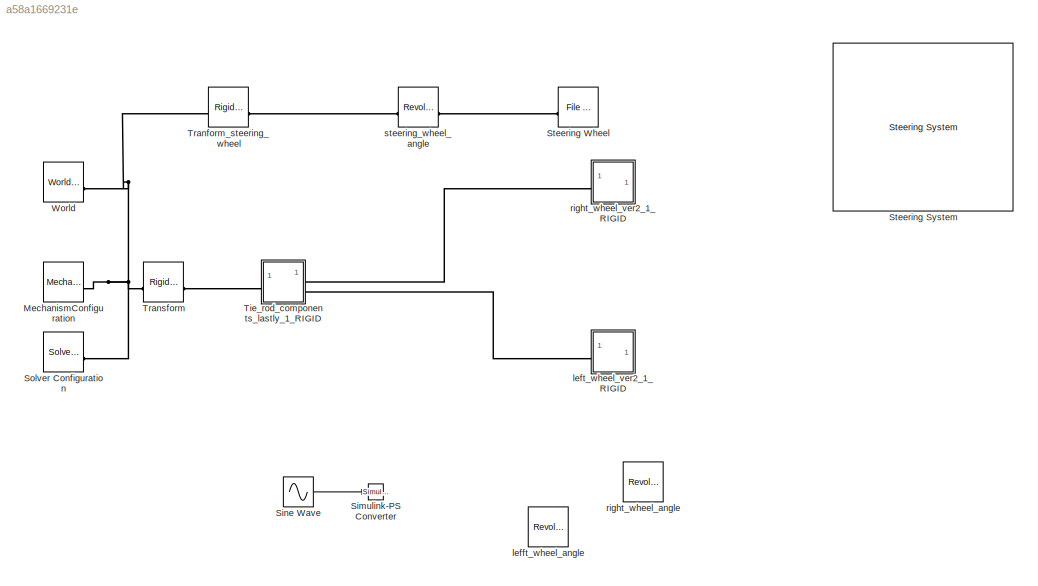
MODEL slx_a58a1669231e
KIND model
CONFIG AbsTol = auto
CONFIG EnableMultiTasking = off
CONFIG FixedStep = auto
CONFIG MaxStep = 0.001
CONFIG MinStep = auto
CONFIG RelTol = 1e-3
CONFIG SampleTimeConstraint = Unconstrained
CONFIG SolverName = VariableStepAuto
CONFIG StartTime = 0.0
CONFIG StopTime = 10.0
WORKSPACE source: external: MATLAB File  (data not in archive)
BLOCK [Reference] MechanismConfiguration  REF=sm_lib/Utilities/Mechanism
Configuration
  SourceBlock = sm_lib/Utilities/Mechanism\nConfiguration
  SourceType = Mechanism\nConfiguration
BLOCK [Reference] Simulink-PS Converter  REF=nesl_utility/Simulink-PS
Converter
  SourceBlock = nesl_utility/Simulink-PS\nConverter
  SourceType = Simulink-PS\nConverter
BLOCK [Sin] Sine Wave
  Amplitude = 10
  SampleTime = 0
BLOCK [Reference] Solver Configuration  REF=nesl_utility/Solver
Configuration
  SourceBlock = nesl_utility/Solver\nConfiguration
  SourceType = Solver\nConfiguration
BLOCK [Reference] Steering System  REF=vehdynlibsteering/Steering System
  SourceBlock = vehdynlibsteering/Steering System
  SourceType = Steering System
BLOCK [Reference] Steering Wheel  REF=sm_lib/Body Elements/File Solid
  NameLocation = top
  SourceBlock = sm_lib/Body Elements/File Solid
  SourceType = File Solid
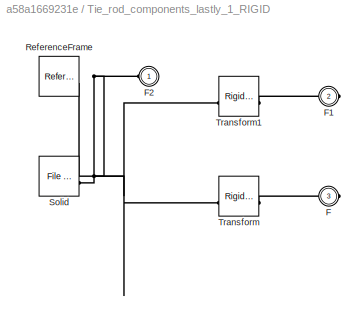
BLOCK [SubSystem] Tie_rod_components_lastly_1_RIGID
BLOCK [PMIOPort] Tie_rod_components_lastly_1_RIGID/F
  Port = 3
  Side = Right
BLOCK [PMIOPort] Tie_rod_components_lastly_1_RIGID/F1
  Port = 2
  Side = Right
BLOCK [PMIOPort] Tie_rod_components_lastly_1_RIGID/F2
  Side = Left
BLOCK [Reference] Tie_rod_components_lastly_1_RIGID/ReferenceFrame  REF=sm_lib/Frames and
Transforms/Reference
Frame
  SourceBlock = sm_lib/Frames and\nTransforms/Reference\nFrame
  SourceType = Reference\nFrame
BLOCK [Reference] Tie_rod_components_lastly_1_RIGID/Solid  REF=sm_lib/Body Elements/File Solid
  SourceBlock = sm_lib/Body Elements/File Solid
  SourceType = File Solid
BLOCK [Reference] Tie_rod_components_lastly_1_RIGID/Transform  REF=sm_lib/Frames and
Transforms/Rigid
Transform
  SourceBlock = sm_lib/Frames and\nTransforms/Rigid\nTransform
  SourceType = Rigid\nTransform
BLOCK [Reference] Tie_rod_components_lastly_1_RIGID/Transform1  REF=sm_lib/Frames and
Transforms/Rigid
Transform
  SourceBlock = sm_lib/Frames and\nTransforms/Rigid\nTransform
  SourceType = Rigid\nTransform
BLOCK [Reference] Tranform_steering_wheel  REF=sm_lib/Frames and
Transforms/Rigid
Transform
  SourceBlock = sm_lib/Frames and\nTransforms/Rigid\nTransform
  SourceType = Rigid\nTransform
BLOCK [Reference] Transform  REF=sm_lib/Frames and
Transforms/Rigid
Transform
  SourceBlock = sm_lib/Frames and\nTransforms/Rigid\nTransform
  SourceType = Rigid\nTransform
BLOCK [Reference] World  REF=sm_lib/Frames and
Transforms/World Frame
  SourceBlock = sm_lib/Frames and\nTransforms/World Frame
  SourceType = World Frame
BLOCK [Reference] lefft_wheel_angle  REF=sm_lib/Joints/Revolute Joint
  SourceBlock = sm_lib/Joints/Revolute Joint
  SourceType = Revolute Joint
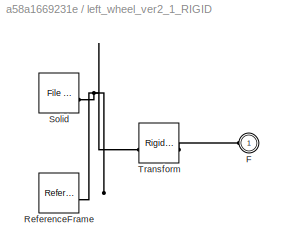
BLOCK [SubSystem] left_wheel_ver2_1_RIGID
BLOCK [PMIOPort] left_wheel_ver2_1_RIGID/F
  Side = Left
BLOCK [Reference] left_wheel_ver2_1_RIGID/ReferenceFrame  REF=sm_lib/Frames and
Transforms/Reference
Frame
  SourceBlock = sm_lib/Frames and\nTransforms/Reference\nFrame
  SourceType = Reference\nFrame
BLOCK [Reference] left_wheel_ver2_1_RIGID/Solid  REF=sm_lib/Body Elements/File Solid
  SourceBlock = sm_lib/Body Elements/File Solid
  SourceType = File Solid
BLOCK [Reference] left_wheel_ver2_1_RIGID/Transform  REF=sm_lib/Frames and
Transforms/Rigid
Transform
  SourceBlock = sm_lib/Frames and\nTransforms/Rigid\nTransform
  SourceType = Rigid\nTransform
BLOCK [Reference] right_wheel_angle  REF=sm_lib/Joints/Revolute Joint
  SourceBlock = sm_lib/Joints/Revolute Joint
  SourceType = Revolute Joint
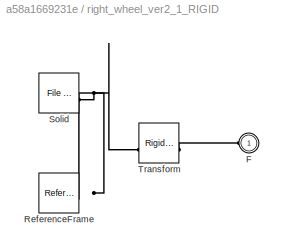
BLOCK [SubSystem] right_wheel_ver2_1_RIGID
BLOCK [PMIOPort] right_wheel_ver2_1_RIGID/F
  Side = Left
BLOCK [Reference] right_wheel_ver2_1_RIGID/ReferenceFrame  REF=sm_lib/Frames and
Transforms/Reference
Frame
  SourceBlock = sm_lib/Frames and\nTransforms/Reference\nFrame
  SourceType = Reference\nFrame
BLOCK [Reference] right_wheel_ver2_1_RIGID/Solid  REF=sm_lib/Body Elements/File Solid
  SourceBlock = sm_lib/Body Elements/File Solid
  SourceType = File Solid
BLOCK [Reference] right_wheel_ver2_1_RIGID/Transform  REF=sm_lib/Frames and
Transforms/Rigid
Transform
  SourceBlock = sm_lib/Frames and\nTransforms/Rigid\nTransform
  SourceType = Rigid\nTransform
BLOCK [Reference] steering_wheel_angle  REF=sm_lib/Joints/Revolute Joint
  SourceBlock = sm_lib/Joints/Revolute Joint
  SourceType = Revolute Joint
LINE Sine Wave:1 -> Simulink-PS Converter:1
PNET net1: MechanismConfiguration:RConn1 -- Solver Configuration:RConn1 -- Tranform_steering_wheel:LConn1 -- Transform:LConn1 -- World:RConn1
PLINE Steering Wheel:RConn1 -- steering_wheel_angle:RConn1
PLINE Tie_rod_components_lastly_1_RIGID/F1:RConn1 -- Tie_rod_components_lastly_1_RIGID/Transform1:RConn1
PNET net2: Tie_rod_components_lastly_1_RIGID/F2:RConn1 -- Tie_rod_components_lastly_1_RIGID/ReferenceFrame:RConn1 -- Tie_rod_components_lastly_1_RIGID/Solid:RConn1 -- Tie_rod_components_lastly_1_RIGID/Transform1:LConn1 -- Tie_rod_components_lastly_1_RIGID/Transform:LConn1
PLINE Tie_rod_components_lastly_1_RIGID/F:RConn1 -- Tie_rod_components_lastly_1_RIGID/Transform:RConn1
PLINE Tie_rod_components_lastly_1_RIGID:LConn1 -- Transform:RConn1
PLINE Tie_rod_components_lastly_1_RIGID:RConn1 -- right_wheel_ver2_1_RIGID:LConn1
PLINE Tie_rod_components_lastly_1_RIGID:RConn2 -- left_wheel_ver2_1_RIGID:LConn1
PLINE Tranform_steering_wheel:RConn1 -- steering_wheel_angle:LConn1
PLINE left_wheel_ver2_1_RIGID/F:RConn1 -- left_wheel_ver2_1_RIGID/Transform:RConn1
PNET net3: left_wheel_ver2_1_RIGID/ReferenceFrame:RConn1 -- left_wheel_ver2_1_RIGID/Solid:RConn1 -- left_wheel_ver2_1_RIGID/Transform:LConn1
PLINE right_wheel_ver2_1_RIGID/F:RConn1 -- right_wheel_ver2_1_RIGID/Transform:RConn1
PNET net4: right_wheel_ver2_1_RIGID/ReferenceFrame:RConn1 -- right_wheel_ver2_1_RIGID/Solid:RConn1 -- right_wheel_ver2_1_RIGID/Transform:LConn1
note: PNET lines group multi-terminal physical nets as a canonical sorted terminal list (undirected conserving connections); 2-terminal nets keep the pairwise PLINE form
